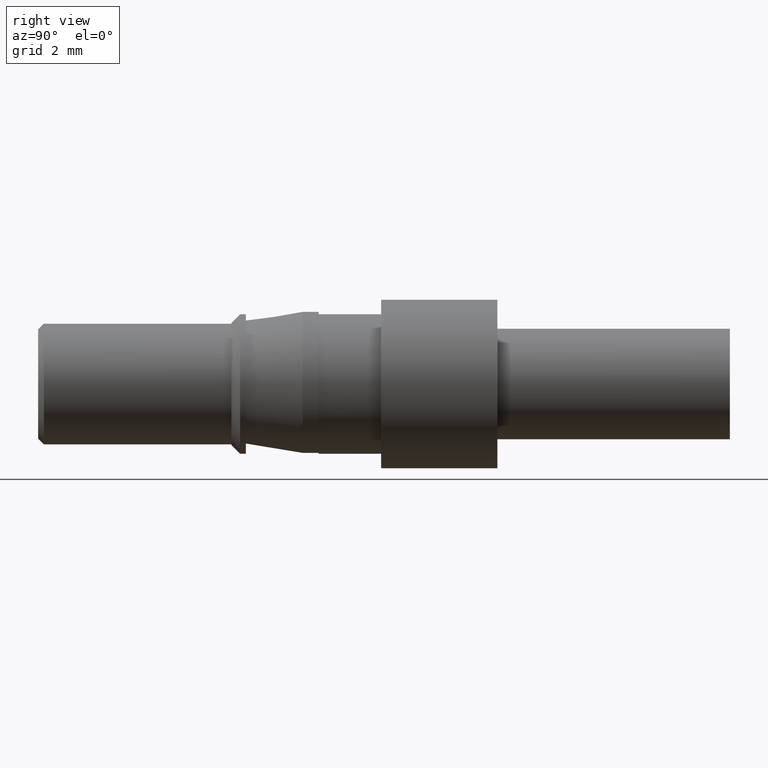
[diagram: clean part render]
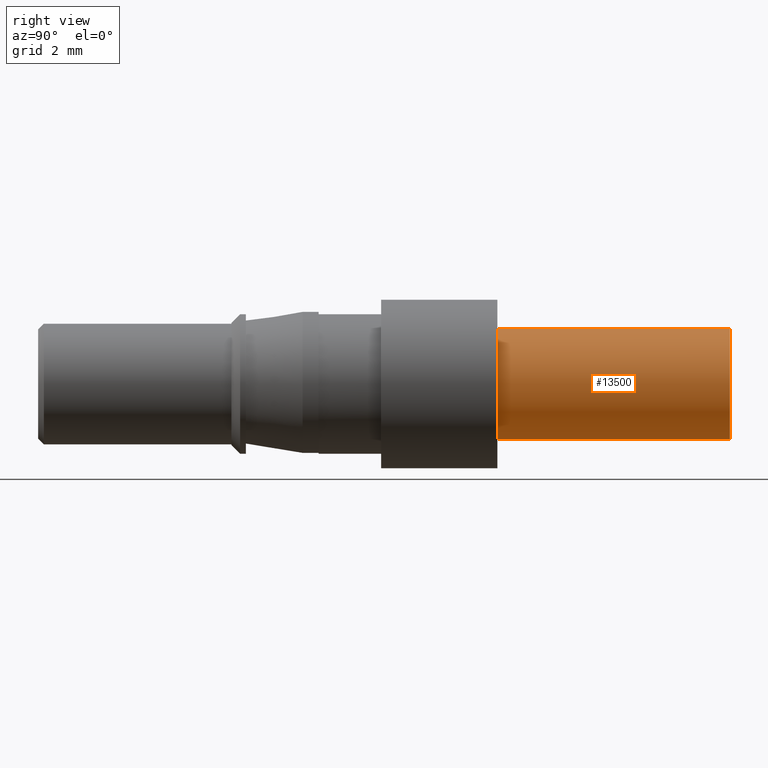
[diagram: same view with one face highlighted and labeled with its STEP entity id]
A machine part, right view. The second image highlights one B-rep face of the part: STEP entity #13500.
In plain terms, the highlighted cylindrical surface (partial cylindrical patch) has radius 1.9 mm, axis along (0, 1, -0).
Its self-contained STEP definition (entity closure, byte-faithful):
#550=CARTESIAN_POINT('',(66.6468230000002,79.2795149999963,
-5.24999999999949));
#560=DIRECTION('',(0.,0.,1.));
#570=VECTOR('',#560,1.);
#580=LINE('',#550,#570);
#590=CARTESIAN_POINT('',(66.6468230000002,79.2795149999963,
-5.24999999999949));
#600=VERTEX_POINT('',#590);
#610=CARTESIAN_POINT('',(66.6468230000002,79.2795149999963,
2.75000000000051));
#620=VERTEX_POINT('',#610);
#630=EDGE_CURVE('',#600,#620,#580,.T.);
#650=CARTESIAN_POINT('',(66.6468230000002,77.3795149999963,
-5.24999999999949));
#660=DIRECTION('',(0.,0.,1.));
#670=DIRECTION('',(0.,1.,0.));
#680=AXIS2_PLACEMENT_3D('',#650,#660,#670);
#690=CIRCLE('',#680,1.9);
#700=CARTESIAN_POINT('',(66.6468230000002,75.4795149999963,
-5.24999999999949));
#710=VERTEX_POINT('',#700);
#740=CARTESIAN_POINT('',(66.6468230000002,75.4795149999963,
-5.24999999999949));
#750=DIRECTION('',(0.,0.,1.));
#760=VECTOR('',#750,1.);
#770=LINE('',#740,#760);
#780=CARTESIAN_POINT('',(66.6468230000002,75.4795149999963,
2.75000000000051));
#790=VERTEX_POINT('',#780);
#800=EDGE_CURVE('',#710,#790,#770,.T.);
#820=CARTESIAN_POINT('',(66.6468230000002,77.3795149999963,
2.75000000000051));
#830=DIRECTION('',(0.,0.,1.));
#840=DIRECTION('',(0.,1.,0.));
#850=AXIS2_PLACEMENT_3D('',#820,#830,#840);
#860=CIRCLE('',#850,1.9);
#3060=EDGE_CURVE('',#600,#710,#690,.T.);
#9460=EDGE_CURVE('',#620,#790,#860,.T.);
#13390=CARTESIAN_POINT('',(66.6468230000002,77.3795149999963,
-5.24999999999949));
#13400=DIRECTION('',(0.,0.,1.));
#13410=DIRECTION('',(0.,1.,0.));
#13420=AXIS2_PLACEMENT_3D('',#13390,#13400,#13410);
#13430=CYLINDRICAL_SURFACE('',#13420,1.9);
#13440=ORIENTED_EDGE('',*,*,#9460,.F.);
#13450=ORIENTED_EDGE('',*,*,#800,.T.);
#13460=ORIENTED_EDGE('',*,*,#3060,.T.);
#13470=ORIENTED_EDGE('',*,*,#630,.F.);
#13480=EDGE_LOOP('',(#13470,#13460,#13450,#13440));
#13490=FACE_OUTER_BOUND('',#13480,.T.);
#13500=ADVANCED_FACE('',(#13490),#13430,.T.);